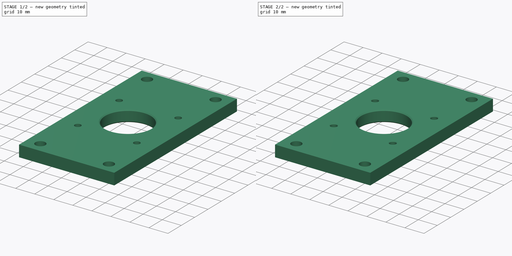
[diagram: build sequence overview — one tinted view per stage of 2, left to right]
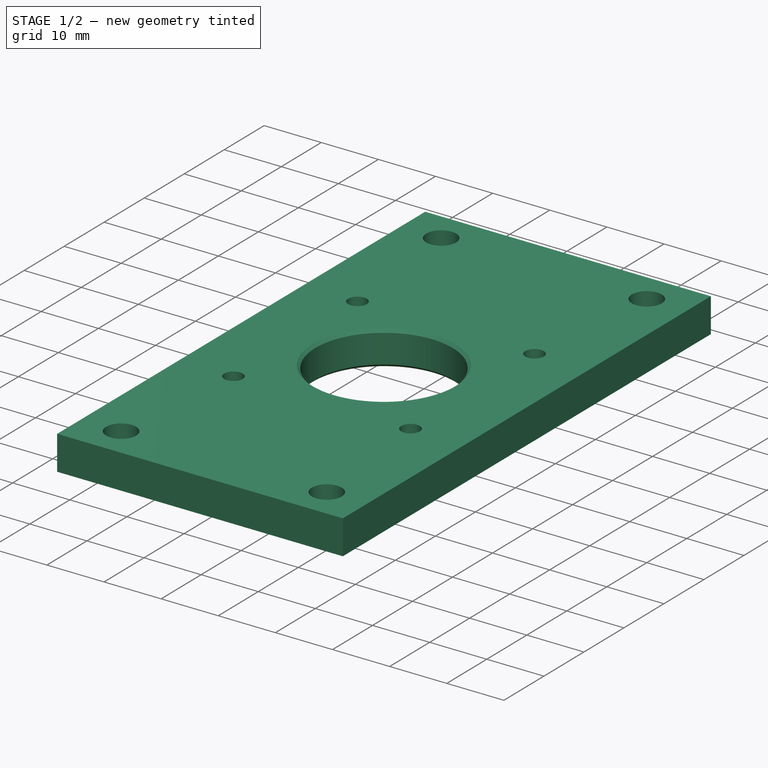
[diagram: stage 1 of 2 — iso view after this stage's code; geometry added in this stage tinted green]
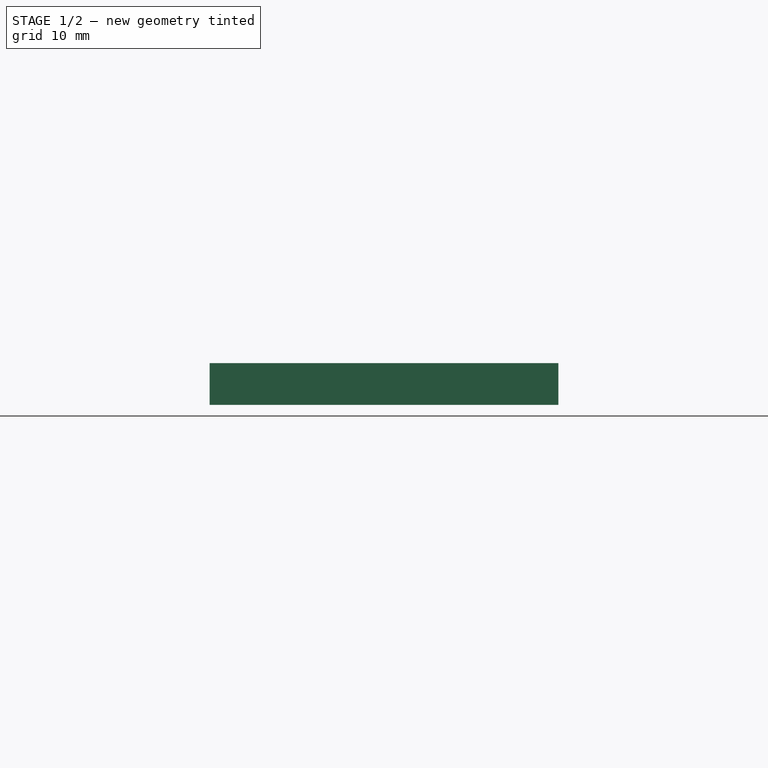
[diagram: stage 1 of 2 — front view after this stage's code; geometry added in this stage tinted green]
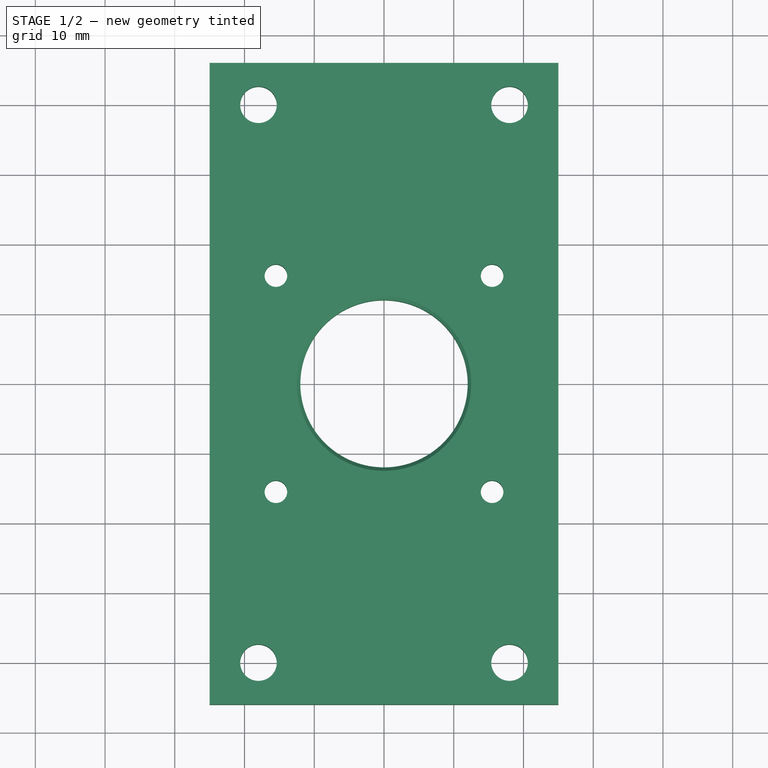
[diagram: stage 1 of 2 — top view after this stage's code; geometry added in this stage tinted green]
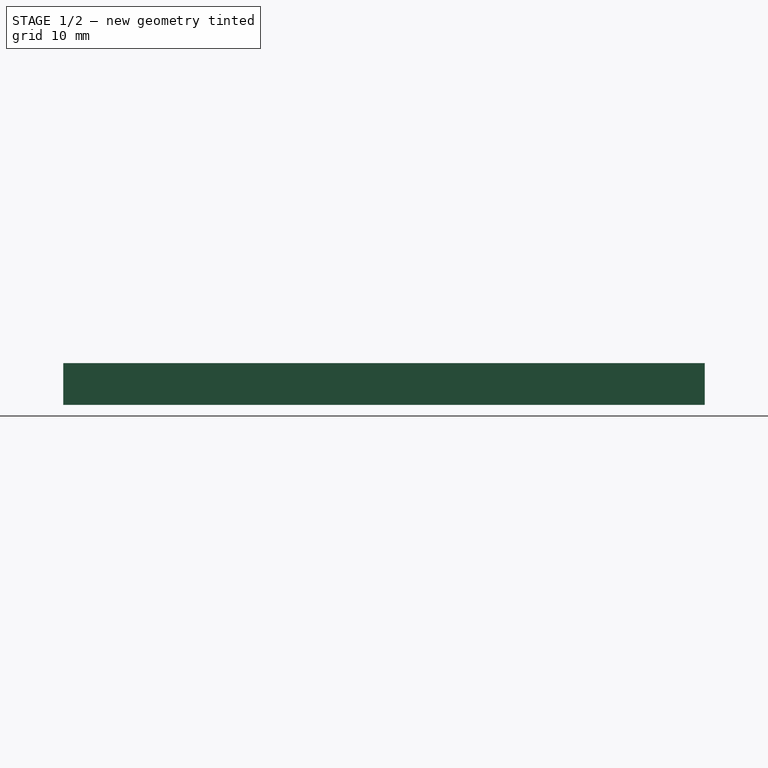
[diagram: stage 1 of 2 — right view after this stage's code; geometry added in this stage tinted green]
FCSTD DOCUMENT  (FreeCAD 0.15R4671 (Git))
Label: z-motor-mount
License: All rights reserved
LicenseURL: http://en.wikipedia.org/wiki/All_rights_reserved
objects: Drawing::FeatureView×18, PartDesign::Chamfer×2, Drawing::FeatureViewPart×2, Sketcher::SketchObject×1, PartDesign::Pad×1, Drawing::FeaturePage×1
note: 5 computed .brp shape members not serialized (recipe doc carries the construction recipe); baked Part::Feature solids carry a one-line shape summary decoded from their .brp

FEATURE [Sketcher::SketchObject] Sketch  label="base-sketch"
  sketch-geometry (21):
    g0: LineSegment [constr] StartX=-18 StartY=40 StartZ=0 EndX=18 EndY=40 EndZ=0
    g1: LineSegment [constr] StartX=18 StartY=40 StartZ=0 EndX=18 EndY=-40 EndZ=0
    g2: LineSegment [constr] StartX=18 StartY=-40 StartZ=0 EndX=-18 EndY=-40 EndZ=0
    g3: LineSegment [constr] StartX=-18 StartY=-40 StartZ=0 EndX=-18 EndY=40 EndZ=0
    g4: LineSegment [constr] StartX=-15.5 StartY=15.5 StartZ=0 EndX=15.5 EndY=15.5 EndZ=0
    g5: LineSegment [constr] StartX=15.5 StartY=15.5 StartZ=0 EndX=15.5 EndY=-15.5 EndZ=0
    g6: LineSegment [constr] StartX=15.5 StartY=-15.5 StartZ=0 EndX=-15.5 EndY=-15.5 EndZ=0
    g7: LineSegment [constr] StartX=-15.5 StartY=-15.5 StartZ=0 EndX=-15.5 EndY=15.5 EndZ=0
    g8: LineSegment StartX=-25 StartY=46 StartZ=0 EndX=25 EndY=46 EndZ=0
    g9: LineSegment StartX=25 StartY=46 StartZ=0 EndX=25 EndY=-46 EndZ=0
    g10: LineSegment StartX=25 StartY=-46 StartZ=0 EndX=-25 EndY=-46 EndZ=0
    g11: LineSegment StartX=-25 StartY=-46 StartZ=0 EndX=-25 EndY=46 EndZ=0
    g12: Circle CenterX=-18 CenterY=40 CenterZ=0 NormalX=0 NormalY=0 NormalZ=1 Radius=2.625
    g13: Circle CenterX=18 CenterY=40 CenterZ=0 NormalX=0 NormalY=0 NormalZ=1 Radius=2.625
    g14: Circle CenterX=-18 CenterY=-40 CenterZ=0 NormalX=0 NormalY=0 NormalZ=1 Radius=2.625
    g15: Circle CenterX=18 CenterY=-40 CenterZ=0 NormalX=0 NormalY=0 NormalZ=1 Radius=2.625
    g16: Circle CenterX=-15.5 CenterY=15.5 CenterZ=0 NormalX=0 NormalY=0 NormalZ=1 Radius=1.625
    g17: Circle CenterX=15.5 CenterY=15.5 CenterZ=0 NormalX=0 NormalY=0 NormalZ=1 Radius=1.625
    g18: Circle CenterX=-15.5 CenterY=-15.5 CenterZ=0 NormalX=0 NormalY=0 NormalZ=1 Radius=1.625
    g19: Circle CenterX=15.5 CenterY=-15.5 CenterZ=0 NormalX=0 NormalY=0 NormalZ=1 Radius=1.625
    g20: Circle CenterX=0 CenterY=0 CenterZ=0 NormalX=0 NormalY=0 NormalZ=1 Radius=12
  constraints (54):
    c: Coincident(g0,g1)
    c: Coincident(g1,g2)
    c: Coincident(g2,g3)
    c: Coincident(g3,g0)
    c: Horizontal(g0)
    c: Horizontal(g2)
    c: Vertical(g1)
    c: Vertical(g3)
    c: Symmetric(g0,g2,g-1)
    c: Symmetric(g0,g0,g-2)
    c: DistanceY(g0,g1) = -80
    c: DistanceX(g2,g1) = 36
    c: Coincident(g4,g5)
    c: Coincident(g5,g6)
    c: Coincident(g6,g7)
    c: Coincident(g7,g4)
    c: Horizontal(g4)
    c: Horizontal(g6)
    c: Vertical(g5)
    c: Vertical(g7)
    c: Symmetric(g4,g4,g-2)
    c: Symmetric(g4,g6,g-1)
    c: Equal(g4,g7)
    c: DistanceY(g4,g6) = -31
    c: Coincident(g8,g9)
    c: Coincident(g9,g10)
    c: Coincident(g10,g11)
    c: Coincident(g11,g8)
    c: Horizontal(g8)
    c: Horizontal(g10)
    c: Vertical(g9)
    c: Vertical(g11)
    c: Symmetric(g8,g8,g-2)
    c: Symmetric(g8,g10,g-1)
    c: DistanceY(g8,g9) = -92
    c: DistanceX(g10,g9) = 50
    c: Coincident(g12,g0)
    c: Coincident(g13,g0)
    c: Coincident(g14,g2)
    c: Coincident(g15,g1)
    c: Radius(g12) = 2.625
    c: Equal(g12,g13)
    c: Equal(g12,g14)
    c: Equal(g12,g15)
    c: Coincident(g16,g4)
    c: Coincident(g17,g4)
    c: Coincident(g18,g6)
    c: Coincident(g19,g5)
    c: Radius(g17) = 1.625
    c: Equal(g17,g16)
    c: Equal(g17,g18)
    c: Equal(g17,g19)
    c: Coincident(g20,g-1)
    c: Radius(g20) = 12
FEATURE [PartDesign::Pad] Pad  label="base"
  Length = 6
  Length2 = 100
  Sketch = -> Sketch
  Type = 0
FEATURE [PartDesign::Chamfer] Chamfer  label="motor-hole-chamfer"
  Base = -> Pad [Edge15,Edge14]
  Size = 0.5
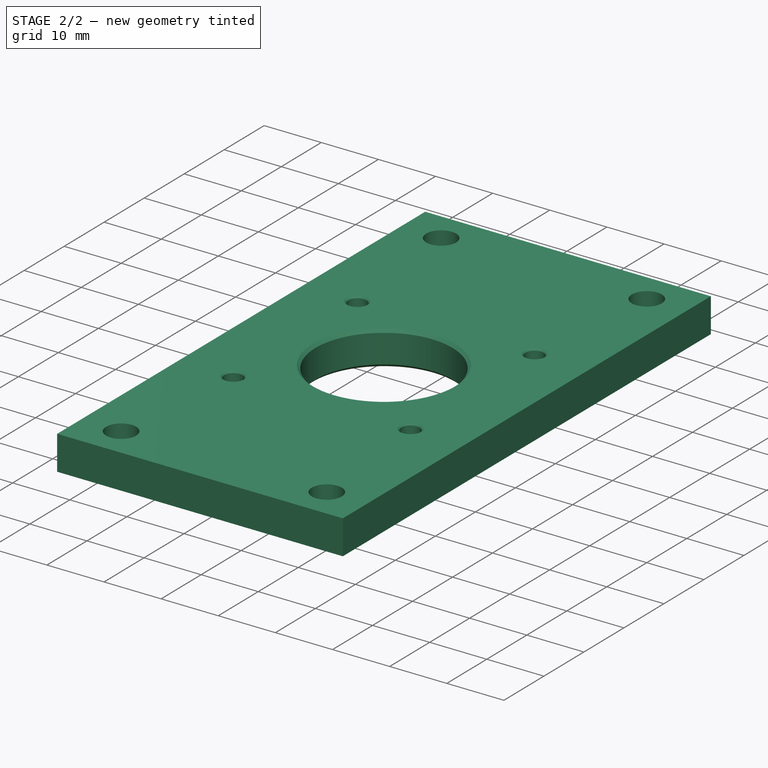
[diagram: stage 2 of 2 — iso view after this stage's code; geometry added in this stage tinted green]
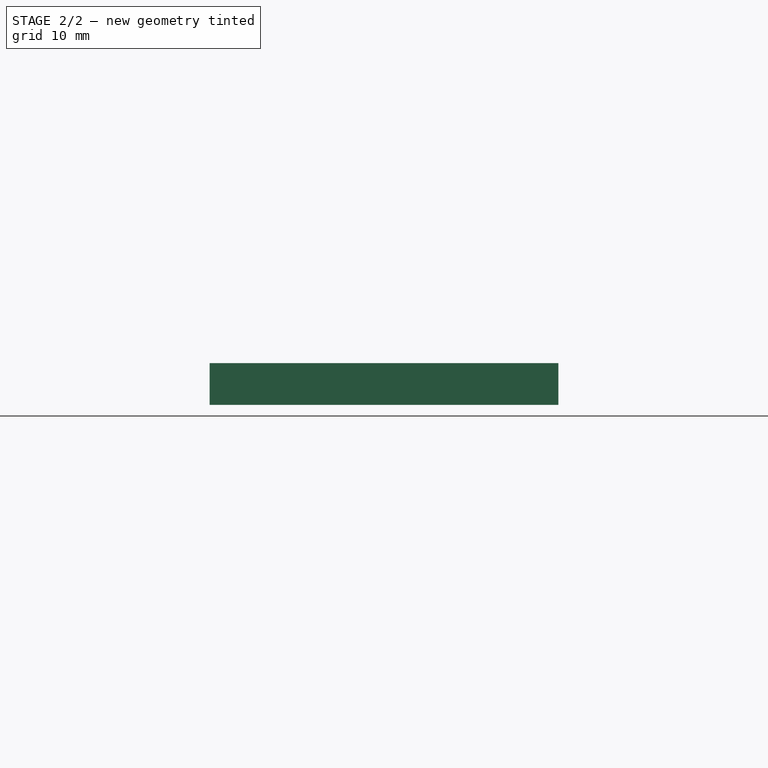
[diagram: stage 2 of 2 — front view after this stage's code; geometry added in this stage tinted green]
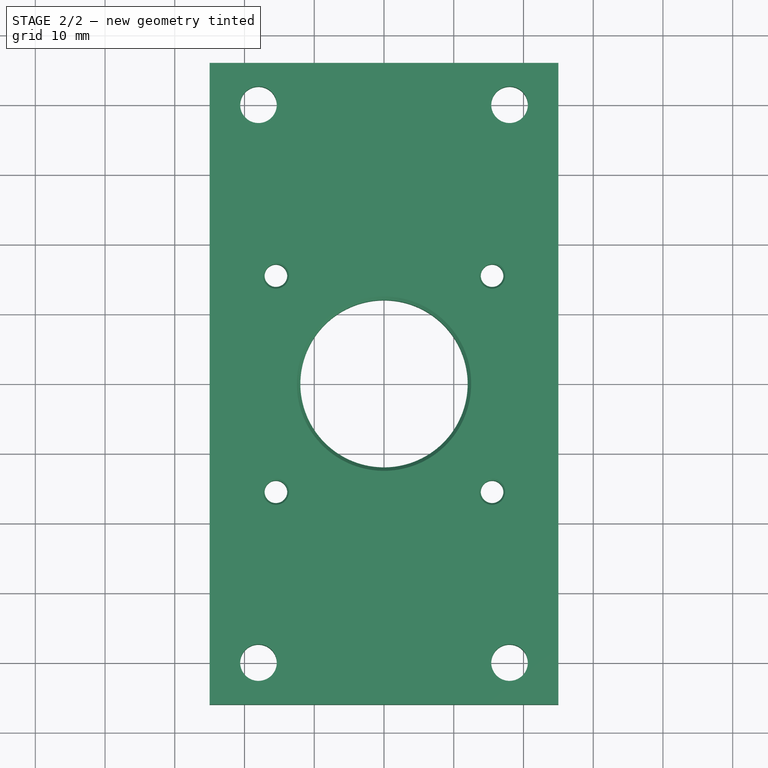
[diagram: stage 2 of 2 — top view after this stage's code; geometry added in this stage tinted green]
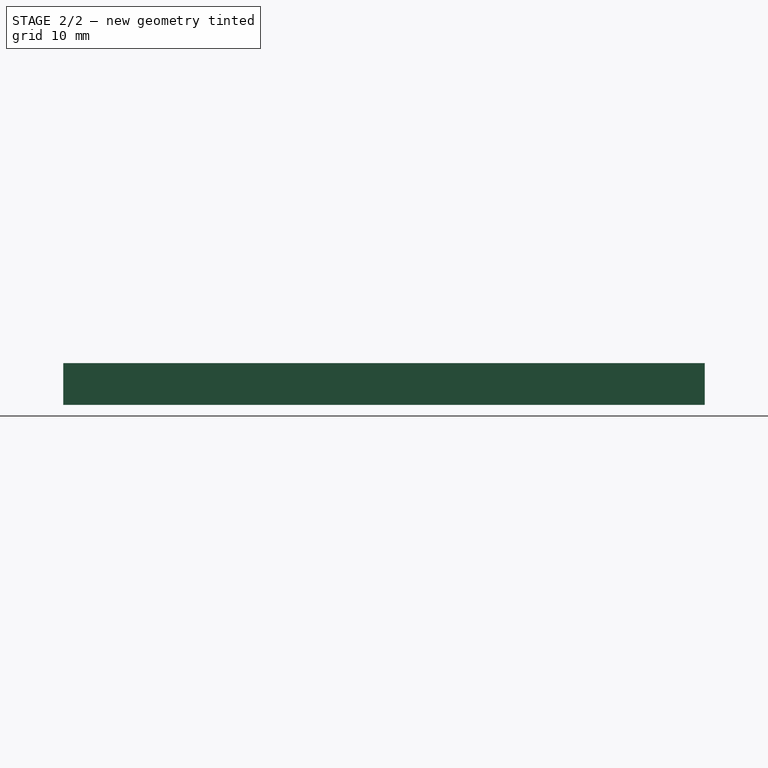
[diagram: stage 2 of 2 — right view after this stage's code; geometry added in this stage tinted green]
FEATURE [PartDesign::Chamfer] Chamfer001  label="z-motor-mount"
  Base = -> Chamfer [Edge31,Edge29,Edge28,Edge30,Edge16,Edge18,Edge17,Edge19]
  Size = 0.25
FEATURE [Drawing::FeatureViewPart] Ortho  label="Ortho_0_0"
  Direction = (1,0,0)
  HiddenWidth = 0.15
  LineWidth = 0.35
  Rotation = -90
  Scale = 2
  ShowHiddenLines = false
  ShowSmoothLines = false
  Source = -> Chamfer001
  Tolerance = 0.05
  ViewResult = <g id="Ortho_0_0"\n   transform="rotate(-90,148.5,177.333) translate(148.5,177.333) scale(2,2)"\n  >\n<g   stroke="rgb(0, 0, 0)"\n   stroke-width="0.175"\n   stroke-linecap="butt"\n   stroke-linejoin="miter"\n   fill="none"\n   transform="scale(1,-1)"\n  >\n<path id= "1" d=" M 0 -46 L 0 46 " />\n<path id= "2" d=" M 0 -46 L 6 -46 " />\n<path id= "3" d=" M 0 46 L 6 46 " />\n<path id= "4" d=" M 6 -46 L 6 46 " />\n</g>\n</g>
  Visible = true
  X = 148.5
  Y = 177.333
FEATURE [Drawing::FeatureViewPart] Ortho001  label="Ortho_0_1"
  Direction = (0,0,1)
  HiddenWidth = 0.15
  LineWidth = 0.35
  Rotation = 90
  Scale = 2
  ShowHiddenLines = false
  ShowSmoothLines = false
  Source = -> Chamfer001
  Tolerance = 0.05
  ViewResult = <g id="Ortho_0_1"\n   transform="rotate(90,148.5,82.6667) translate(148.5,82.6667) scale(2,2)"\n  >\n<g   stroke="rgb(0, 0, 0)"\n   stroke-width="0.175"\n   stroke-linecap="butt"\n   stroke-linejoin="miter"\n   fill="none"\n   transform="scale(1,-1)"\n  >\n<path id= "1" d=" M -25 46 L 25 46 " />\n<path id= "2" d=" M 25 46 L 25 -46 " />\n<path id= "3" d=" M 25 -46 L -25 -46 " />\n<path id= "4" d=" M -25 -46 L -25 46 " />\n<circle cx ="18" cy ="-40" r ="2.625" /><circle cx ="-18" cy ="-40" r ="2.625" /><circle cx ="18" cy ="40" r ="2.625" /><circle cx ="-18" cy ="40" r ="2.625" /><circle cx ="15.5" cy ="-15.5" r ="1.625" /><circle cx ="0" cy ="0" r ="12" /><circle cx ="-15.5" cy ="15.5" r ="1.875" /><circle cx ="0" cy ="0" r ="12.5" /><circle cx ="-15.5" cy ="-15.5" r ="1.875" /><circle cx ="15.5" cy ="-15.5" r ="1.875" /><circle cx ="15.5" cy ="15.5" r ="1.875" /><circle cx ="15.5" cy ="15.5" r ="1.625" /><circle cx ="-15.5" cy ="-15.5" r ="1.625" /><circle cx ="-15.5" cy ="15.5" r ="1.625" /></g>\n</g>
  Visible = true
  X = 148.5
  Y = 82.6667
FEATURE [Drawing::FeatureView] dim003
  Rotation = 0
  ViewResult = <g> \n  <line x1="54.500000" y1="32.666700" x2="22.110286" y2="32.666700" style="stroke:rgb(0,0,255);stroke-width:0.50" />\n<line x1="54.500000" y1="132.666700" x2="22.110286" y2="132.666700" style="stroke:rgb(0,0,255);stroke-width:0.50" />\n<line x1="23.110286" y1="32.666700" x2="23.110286" y2="132.666700" style="stroke:rgb(0,0,255);stroke-width:0.50" /> \n  <polygon points="23.110286,132.666700 24.110286,129.666700 23.110286,128.666700 22.110286,129.666700" style="fill:rgb(0,0,255);stroke:rgb(0,0,255);stroke-width:0" /><polygon points="23.110286,32.666700 22.110286,35.666700 23.110286,36.666700 24.110286,35.666700" style="fill:rgb(0,0,255);stroke:rgb(0,0,255);stroke-width:0" /> \n  <text x="21.110286" y="82.666700" font-family="inherit" font-size="3.6" fill="rgb(0,0,255)" text-anchor="middle" transform="rotate(-90.000000 21.110286,82.666700)" >50</text> </g>
  Visible = true
  X = 0
  Y = 0
FEATURE [Drawing::FeatureView] dim004
  Rotation = 0
  ViewResult = <g> \n  <line x1="66.500000" y1="46.666700" x2="34.820943" y2="46.666700" style="stroke:rgb(0,0,255);stroke-width:0.50" />\n<line x1="66.500000" y1="118.666700" x2="34.820943" y2="118.666700" style="stroke:rgb(0,0,255);stroke-width:0.50" />\n<line x1="35.820943" y1="46.666700" x2="35.820943" y2="118.666700" style="stroke:rgb(0,0,255);stroke-width:0.50" /> \n  <polygon points="35.820943,118.666700 36.820943,115.666700 35.820943,114.666700 34.820943,115.666700" style="fill:rgb(0,0,255);stroke:rgb(0,0,255);stroke-width:0" /><polygon points="35.820943,46.666700 34.820943,49.666700 35.820943,50.666700 36.820943,49.666700" style="fill:rgb(0,0,255);stroke:rgb(0,0,255);stroke-width:0" /> \n  <text x="33.820943" y="82.666700" font-family="inherit" font-size="3.6" fill="rgb(0,0,255)" text-anchor="middle" transform="rotate(-90.000000 33.820943,82.666700)" >36</text> </g>
  Visible = true
  X = 0
  Y = 0
FEATURE [Drawing::FeatureView] centerLines001
  Rotation = 0
  ViewResult = <g transform="scale(2.000000,2.000000)" stroke="rgb(0,0,255)"  stroke-width="0.160000" > <path d="M 74.250000,16.333350 L 74.250000,17.833350 M 74.250000,18.833350 L 74.250000,21.833350 M 74.250000,22.833350 L 74.250000,24.333350 M 74.250000,25.333350 L 74.250000,28.333350 M 74.250000,29.333350 L 74.250000,30.833350 M 74.250000,31.833350 L 74.250000,34.833350 M 74.250000,35.833350 L 74.250000,37.333350 M 74.250000,38.333350 L 74.250000,41.333350 M 74.250000,42.333350 L 74.250000,43.833350 M 74.250000,44.833350 L 74.250000,47.833350 M 74.250000,48.833350 L 74.250000,50.333350 M 74.250000,51.333350 L 74.250000,54.333350 M 74.250000,55.333350 L 74.250000,56.833350 M 74.250000,57.833350 L 74.250000,60.833350 M 74.250000,61.833350 L 74.250000,63.333350 M 74.250000,64.333350 L 74.250000,66.870041 "/>\n<path d="M 74.250000,16.333350 L 74.250000,17.833350 M 74.250000,18.833350 L 74.250000,21.833350 M 74.250000,22.833350 L 74.250000,24.333350 M 74.250000,25.333350 L 74.250000,28.333350 M 74.250000,29.333350 L 74.250000,30.833350 M 74.250000,31.833350 L 74.250000,34.833350 M 74.250000,35.833350 L 74.250000,37.333350 M 74.250000,38.333350 L 74.250000,41.333350 M 74.250000,42.333350 L 74.250000,43.833350 M 74.250000,44.833350 L 74.250000,47.833350 M 74.250000,48.833350 L 74.250000,50.333350 M 74.250000,51.333350 L 74.250000,54.333350 M 74.250000,55.333350 L 74.250000,56.833350 M 74.250000,57.833350 L 74.250000,60.833350 M 74.250000,61.833350 L 74.250000,63.333350 M 74.250000,64.333350 L 74.250000,66.870041 "/> </g> 
  Visible = true
  X = 0
  Y = 0
FEATURE [Drawing::FeatureView] dim008
  Rotation = 0
  ViewResult = <g>  <circle cx ="179.500000" cy ="51.666700" r="0.250000" stroke="none" fill="rgb(0,0,255)" /> \n<line x1="186.108147" y1="42.680027" x2="177.574674" y2="54.285024" style="stroke:rgb(0,0,255);stroke-width:0.50" />\n<polygon points="181.425326,49.048376 184.008187,47.223869 183.794957,45.825823 182.396911,46.039053" style="fill:rgb(0,0,255);stroke:rgb(0,0,255);stroke-width:0" />\n<polygon points="177.574674,54.285024 174.991813,56.109531 175.205043,57.507577 176.603089,57.294347" style="fill:rgb(0,0,255);stroke:rgb(0,0,255);stroke-width:0" />\n<line x1="186.108147" y1="42.680027" x2="194.818357" y2="42.680027" style="stroke:rgb(0,0,255);stroke-width:0.50" />\n<text x="190.463252" y="40.680027" font-family="inherit" font-size="3.6" fill="rgb(0,0,255)" text-anchor="middle"  >4 x Ø3.25</text> </g>
  Visible = true
  X = 0
  Y = 0
FEATURE [Drawing::FeatureView] dim009
  Rotation = 0
  ViewResult = <g>  <circle cx ="148.500000" cy ="82.666700" r="0.250000" stroke="none" fill="rgb(0,0,255)" /> \n<line x1="173.333173" y1="69.391337" x2="127.334512" y2="93.981385" style="stroke:rgb(0,0,255);stroke-width:0.50" />\n<polygon points="169.665488,71.352015 166.548357,71.884455 166.137907,73.237796 167.491248,73.648246" style="fill:rgb(0,0,255);stroke:rgb(0,0,255);stroke-width:0" />\n<polygon points="127.334512,93.981385 130.451643,93.448945 130.862093,92.095604 129.508752,91.685154" style="fill:rgb(0,0,255);stroke:rgb(0,0,255);stroke-width:0" />\n<line x1="173.333173" y1="69.391337" x2="189.882571" y2="69.391337" style="stroke:rgb(0,0,255);stroke-width:0.50" />\n<text x="181.607872" y="67.391337" font-family="inherit" font-size="3.6" fill="rgb(0,0,255)" text-anchor="middle" transform="rotate(0.000000 181.607872,67.391337)" >Ø24</text> </g>
  Visible = true
  X = 0
  Y = 0
FEATURE [Drawing::FeatureView] dim010
  Rotation = 0
  ViewResult = <g> \n  <line x1="54.500000" y1="165.333000" x2="39.066965" y2="165.333000" style="stroke:rgb(0,0,255);stroke-width:0.50" />\n<line x1="54.500000" y1="177.333000" x2="39.066965" y2="177.333000" style="stroke:rgb(0,0,255);stroke-width:0.50" />\n<line x1="40.066965" y1="165.333000" x2="40.066965" y2="177.333000" style="stroke:rgb(0,0,255);stroke-width:0.50" /> \n  <polygon points="40.066965,177.333000 41.066965,174.333000 40.066965,173.333000 39.066965,174.333000" style="fill:rgb(0,0,255);stroke:rgb(0,0,255);stroke-width:0" /><polygon points="40.066965,165.333000 39.066965,168.333000 40.066965,169.333000 41.066965,168.333000" style="fill:rgb(0,0,255);stroke:rgb(0,0,255);stroke-width:0" /> \n  <text x="38.066965" y="171.333000" font-family="inherit" font-size="3.6" fill="rgb(0,0,255)" text-anchor="middle" transform="rotate(-90.000000 38.066965,171.333000)" >6</text> </g>
  Visible = true
  X = 0
  Y = 0
FEATURE [Drawing::FeatureView] dim007
  Rotation = 0
  ViewResult = <g>  <circle cx ="68.500000" cy ="46.666700" r="0.250000" stroke="none" fill="rgb(0,0,255)" /> \n<line x1="75.778824" y1="37.744242" x2="65.181341" y2="50.734746" style="stroke:rgb(0,0,255);stroke-width:0.50" />\n<polygon points="71.818659,42.598654 69.147416,44.291126 69.290157,45.698118 70.697148,45.555377" style="fill:rgb(0,0,255);stroke:rgb(0,0,255);stroke-width:0" />\n<polygon points="65.181341,50.734746 67.852584,49.042274 67.709843,47.635282 66.302852,47.778023" style="fill:rgb(0,0,255);stroke:rgb(0,0,255);stroke-width:0" />\n<line x1="75.778824" y1="37.744242" x2="86.521416" y2="37.744242" style="stroke:rgb(0,0,255);stroke-width:0.50" />\n<text x="81.150120" y="35.744242" font-family="inherit" font-size="3.6" fill="rgb(0,0,255)" text-anchor="middle"  >4 x Ø5.25</text> </g>
  Visible = true
  X = 0
  Y = 0
FEATURE [Drawing::FeatureView] dim011
  Rotation = 0
  ViewResult = <g> \n  <line x1="66.500000" y1="118.666700" x2="34.730616" y2="118.666700" style="stroke:rgb(0,0,255);stroke-width:0.50" />\n<line x1="54.500000" y1="132.666700" x2="34.730616" y2="132.666700" style="stroke:rgb(0,0,255);stroke-width:0.50" />\n<line x1="35.730616" y1="118.666700" x2="35.730616" y2="132.666700" style="stroke:rgb(0,0,255);stroke-width:0.50" /> \n  <polygon points="35.730616,132.666700 36.730616,129.666700 35.730616,128.666700 34.730616,129.666700" style="fill:rgb(0,0,255);stroke:rgb(0,0,255);stroke-width:0" /><polygon points="35.730616,118.666700 34.730616,121.666700 35.730616,122.666700 36.730616,121.666700" style="fill:rgb(0,0,255);stroke:rgb(0,0,255);stroke-width:0" /> \n  <text x="33.730616" y="125.666700" font-family="inherit" font-size="3.6" fill="rgb(0,0,255)" text-anchor="middle" transform="rotate(-90.000000 33.730616,125.666700)" >7</text> </g>
  Visible = true
  X = 0
  Y = 0
FEATURE [Drawing::FeatureView] dim001
  Rotation = 0
  ViewResult = <g> \n  <line x1="56.500000" y1="30.666700" x2="56.500000" y2="8.310378" style="stroke:rgb(0,0,255);stroke-width:0.50" />\n<line x1="240.500000" y1="30.666700" x2="240.500000" y2="8.310378" style="stroke:rgb(0,0,255);stroke-width:0.50" />\n<line x1="56.500000" y1="9.310378" x2="240.500000" y2="9.310378" style="stroke:rgb(0,0,255);stroke-width:0.50" /> \n  <polygon points="240.500000,9.310378 237.500000,8.310378 236.500000,9.310378 237.500000,10.310378" style="fill:rgb(0,0,255);stroke:rgb(0,0,255);stroke-width:0" /><polygon points="56.500000,9.310378 59.500000,10.310378 60.500000,9.310378 59.500000,8.310378" style="fill:rgb(0,0,255);stroke:rgb(0,0,255);stroke-width:0" /> \n  <text x="148.500000" y="7.310378" font-family="inherit" font-size="3.6" fill="rgb(0,0,255)" text-anchor="middle" transform="rotate(0.000000 148.500000,7.310378)" >92</text> </g>
  Visible = true
  X = 0
  Y = 0
FEATURE [Drawing::FeatureView] dim002
  Rotation = 0
  ViewResult = <g> \n  <line x1="68.500000" y1="44.666700" x2="68.500000" y2="15.774684" style="stroke:rgb(0,0,255);stroke-width:0.50" />\n<line x1="228.500000" y1="44.666700" x2="228.500000" y2="15.774684" style="stroke:rgb(0,0,255);stroke-width:0.50" />\n<line x1="68.500000" y1="16.774684" x2="228.500000" y2="16.774684" style="stroke:rgb(0,0,255);stroke-width:0.50" /> \n  <polygon points="228.500000,16.774684 225.500000,15.774684 224.500000,16.774684 225.500000,17.774684" style="fill:rgb(0,0,255);stroke:rgb(0,0,255);stroke-width:0" /><polygon points="68.500000,16.774684 71.500000,17.774684 72.500000,16.774684 71.500000,15.774684" style="fill:rgb(0,0,255);stroke:rgb(0,0,255);stroke-width:0" /> \n  <text x="148.500000" y="14.774684" font-family="inherit" font-size="3.6" fill="rgb(0,0,255)" text-anchor="middle" transform="rotate(0.000000 148.500000,14.774684)" >80</text> </g>
  Visible = true
  X = 0
  Y = 0
FEATURE [Drawing::FeatureView] dim012
  Rotation = 0
  ViewResult = <g> \n  <line x1="56.500000" y1="30.666700" x2="56.500000" y2="15.774684" style="stroke:rgb(0,0,255);stroke-width:0.50" />\n<line x1="68.500000" y1="44.666700" x2="68.500000" y2="15.774684" style="stroke:rgb(0,0,255);stroke-width:0.50" />\n<line x1="56.500000" y1="16.774684" x2="68.500000" y2="16.774684" style="stroke:rgb(0,0,255);stroke-width:0.50" /> \n  <polygon points="68.500000,16.774684 65.500000,15.774684 64.500000,16.774684 65.500000,17.774684" style="fill:rgb(0,0,255);stroke:rgb(0,0,255);stroke-width:0" /><polygon points="56.500000,16.774684 59.500000,17.774684 60.500000,16.774684 59.500000,15.774684" style="fill:rgb(0,0,255);stroke:rgb(0,0,255);stroke-width:0" /> \n  <text x="62.500000" y="14.774684" font-family="inherit" font-size="3.6" fill="rgb(0,0,255)" text-anchor="middle" transform="rotate(0.000000 62.500000,14.774684)" >6</text> </g>
  Visible = true
  X = 0
  Y = 0
FEATURE [Drawing::FeatureView] dim013
  Rotation = 0
  ViewResult = <g> \n  <line x1="117.500000" y1="49.666700" x2="117.500000" y2="23.230098" style="stroke:rgb(0,0,255);stroke-width:0.50" />\n<line x1="179.500000" y1="49.666700" x2="179.500000" y2="23.230098" style="stroke:rgb(0,0,255);stroke-width:0.50" />\n<line x1="117.500000" y1="24.230098" x2="179.500000" y2="24.230098" style="stroke:rgb(0,0,255);stroke-width:0.50" /> \n  <polygon points="179.500000,24.230098 176.500000,23.230098 175.500000,24.230098 176.500000,25.230098" style="fill:rgb(0,0,255);stroke:rgb(0,0,255);stroke-width:0" /><polygon points="117.500000,24.230098 120.500000,25.230098 121.500000,24.230098 120.500000,23.230098" style="fill:rgb(0,0,255);stroke:rgb(0,0,255);stroke-width:0" /> \n  <text x="148.500000" y="22.230098" font-family="inherit" font-size="3.6" fill="rgb(0,0,255)" text-anchor="middle" transform="rotate(0.000000 148.500000,22.230098)" >31</text> </g>
  Visible = true
  X = 0
  Y = 0
FEATURE [Drawing::FeatureView] dim006
  Rotation = 0
  ViewResult = <g> \n  <line x1="117.500000" y1="49.666700" x2="117.500000" y2="23.103987" style="stroke:rgb(0,0,255);stroke-width:0.50" />\n<line x1="68.500000" y1="44.666700" x2="68.500000" y2="23.103987" style="stroke:rgb(0,0,255);stroke-width:0.50" />\n<line x1="117.500000" y1="24.103987" x2="68.500000" y2="24.103987" style="stroke:rgb(0,0,255);stroke-width:0.50" /> \n  <polygon points="68.500000,24.103987 71.500000,25.103987 72.500000,24.103987 71.500000,23.103987" style="fill:rgb(0,0,255);stroke:rgb(0,0,255);stroke-width:0" /><polygon points="117.500000,24.103987 114.500000,23.103987 113.500000,24.103987 114.500000,25.103987" style="fill:rgb(0,0,255);stroke:rgb(0,0,255);stroke-width:0" /> \n  <text x="93.000000" y="22.103987" font-family="inherit" font-size="3.6" fill="rgb(0,0,255)" text-anchor="middle" transform="rotate(0.000000 93.000000,22.103987)" >24.5</text> </g>
  Visible = true
  X = 0
  Y = 0
FEATURE [Drawing::FeatureView] dim005
  Rotation = 0
  ViewResult = <g> \n  <line x1="115.500000" y1="51.666700" x2="103.639660" y2="51.666700" style="stroke:rgb(0,0,255);stroke-width:0.50" />\n<line x1="115.500000" y1="113.666700" x2="103.639660" y2="113.666700" style="stroke:rgb(0,0,255);stroke-width:0.50" />\n<line x1="104.639660" y1="51.666700" x2="104.639660" y2="113.666700" style="stroke:rgb(0,0,255);stroke-width:0.50" /> \n  <polygon points="104.639660,113.666700 105.639660,110.666700 104.639660,109.666700 103.639660,110.666700" style="fill:rgb(0,0,255);stroke:rgb(0,0,255);stroke-width:0" /><polygon points="104.639660,51.666700 103.639660,54.666700 104.639660,55.666700 105.639660,54.666700" style="fill:rgb(0,0,255);stroke:rgb(0,0,255);stroke-width:0" /> \n  <text x="103.108348" y="76.225313" font-family="inherit" font-size="3.6" fill="rgb(0,0,255)" text-anchor="middle" transform="rotate(-90.000000 103.108348,76.225313)" >31</text> </g>
  Visible = true
  X = 0
  Y = 0
FEATURE [Drawing::FeatureView] dim014
  Rotation = 0
  ViewResult = <g> \n  <line x1="238.500000" y1="132.666700" x2="103.639660" y2="132.666700" style="stroke:rgb(0,0,255);stroke-width:0.50" />\n<line x1="115.500000" y1="113.666700" x2="103.639660" y2="113.666700" style="stroke:rgb(0,0,255);stroke-width:0.50" />\n<line x1="104.639660" y1="132.666700" x2="104.639660" y2="113.666700" style="stroke:rgb(0,0,255);stroke-width:0.50" /> \n  <polygon points="104.639660,113.666700 103.639660,116.666700 104.639660,117.666700 105.639660,116.666700" style="fill:rgb(0,0,255);stroke:rgb(0,0,255);stroke-width:0" /><polygon points="104.639660,132.666700 105.639660,129.666700 104.639660,128.666700 103.639660,129.666700" style="fill:rgb(0,0,255);stroke:rgb(0,0,255);stroke-width:0" /> \n  <text x="102.639660" y="123.166700" font-family="inherit" font-size="3.6" fill="rgb(0,0,255)" text-anchor="middle" transform="rotate(-90.000000 102.639660,123.166700)" >9.5</text> </g>
  Visible = true
  X = 0
  Y = 0
FEATURE [Drawing::FeatureView] dim015
  Rotation = 0
  ViewResult = <g> \n  <line x1="56.500000" y1="134.666700" x2="56.500000" y2="145.907497" style="stroke:rgb(0,0,255);stroke-width:0.50" />\n<line x1="148.500000" y1="135.740082" x2="148.500000" y2="145.907497" style="stroke:rgb(0,0,255);stroke-width:0.50" />\n<line x1="56.500000" y1="144.907497" x2="148.500000" y2="144.907497" style="stroke:rgb(0,0,255);stroke-width:0.50" /> \n  <polygon points="148.500000,144.907497 145.500000,143.907497 144.500000,144.907497 145.500000,145.907497" style="fill:rgb(0,0,255);stroke:rgb(0,0,255);stroke-width:0" /><polygon points="56.500000,144.907497 59.500000,145.907497 60.500000,144.907497 59.500000,143.907497" style="fill:rgb(0,0,255);stroke:rgb(0,0,255);stroke-width:0" /> \n  <text x="102.500000" y="142.907497" font-family="inherit" font-size="3.6" fill="rgb(0,0,255)" text-anchor="middle" transform="rotate(0.000000 102.500000,142.907497)" >46</text> </g>
  Visible = true
  X = 0
  Y = 0
FEATURE [Drawing::FeatureView] centerLines002
  Rotation = 0
  ViewResult = <g transform="scale(2.000000,2.000000)" stroke="rgb(0,0,255)"  stroke-width="0.160000" > <path d="M 74.250000,41.333350 L 74.250000,40.818397 "/>\n<path d="M 74.250000,41.333350 L 75.750000,41.333350 M 76.750000,41.333350 L 79.750000,41.333350 M 80.750000,41.333350 L 82.250000,41.333350 M 83.250000,41.333350 L 86.250000,41.333350 M 87.250000,41.333350 L 88.750000,41.333350 M 89.750000,41.333350 L 92.750000,41.333350 M 93.750000,41.333350 L 95.250000,41.333350 M 96.250000,41.333350 L 99.250000,41.333350 M 100.250000,41.333350 L 101.750000,41.333350 M 102.750000,41.333350 L 105.750000,41.333350 M 106.750000,41.333350 L 108.250000,41.333350 M 109.250000,41.333350 L 112.250000,41.333350 M 113.250000,41.333350 L 114.750000,41.333350 M 115.750000,41.333350 L 118.750000,41.333350 M 119.750000,41.333350 L 121.250000,41.333350 "/>\n<path d="M 74.250000,41.333350 L 74.250000,41.936709 "/>\n<path d="M 74.250000,41.333350 L 72.750000,41.333350 M 71.750000,41.333350 L 68.750000,41.333350 M 67.750000,41.333350 L 66.250000,41.333350 M 65.250000,41.333350 L 62.250000,41.333350 M 61.250000,41.333350 L 59.750000,41.333350 M 58.750000,41.333350 L 55.750000,41.333350 M 54.750000,41.333350 L 53.250000,41.333350 M 52.250000,41.333350 L 49.250000,41.333350 M 48.250000,41.333350 L 46.750000,41.333350 M 45.750000,41.333350 L 42.750000,41.333350 M 41.750000,41.333350 L 40.250000,41.333350 M 39.250000,41.333350 L 36.250000,41.333350 M 35.250000,41.333350 L 33.750000,41.333350 M 32.750000,41.333350 L 29.750000,41.333350 M 28.750000,41.333350 L 27.250000,41.333350 M 26.250000,41.333350 L 25.721181,41.333350 "/> </g> 
  Visible = true
  X = 0
  Y = 0
FEATURE [Drawing::FeatureView] dim016
  Rotation = 0
  ViewResult = <g> \n  <line x1="242.500000" y1="132.666700" x2="257.920141" y2="132.666700" style="stroke:rgb(0,0,255);stroke-width:0.50" />\n<line x1="244.500000" y1="82.666700" x2="257.920141" y2="82.666700" style="stroke:rgb(0,0,255);stroke-width:0.50" />\n<line x1="256.920141" y1="132.666700" x2="256.920141" y2="82.666700" style="stroke:rgb(0,0,255);stroke-width:0.50" /> \n  <polygon points="256.920141,82.666700 255.920141,85.666700 256.920141,86.666700 257.920141,85.666700" style="fill:rgb(0,0,255);stroke:rgb(0,0,255);stroke-width:0" /><polygon points="256.920141,132.666700 257.920141,129.666700 256.920141,128.666700 255.920141,129.666700" style="fill:rgb(0,0,255);stroke:rgb(0,0,255);stroke-width:0" /> \n  <text x="254.920141" y="107.666700" font-family="inherit" font-size="3.6" fill="rgb(0,0,255)" text-anchor="middle" transform="rotate(-90.000000 254.920141,107.666700)" >25</text> </g>
  Visible = true
  X = 0
  Y = 0
FEATURE [Drawing::FeaturePage] Page
  Group = -> [Ortho,Ortho001,dim003,dim004,centerLines001,dim008,dim009,dim010,dim007,dim011,dim001,dim002,dim012,dim013,dim006,dim005,dim014,dim015,centerLines002,dim016]
  Template = <path>
note: 1 file-system path scrubbed to <path> (originals preserved in the JSON sidecar)
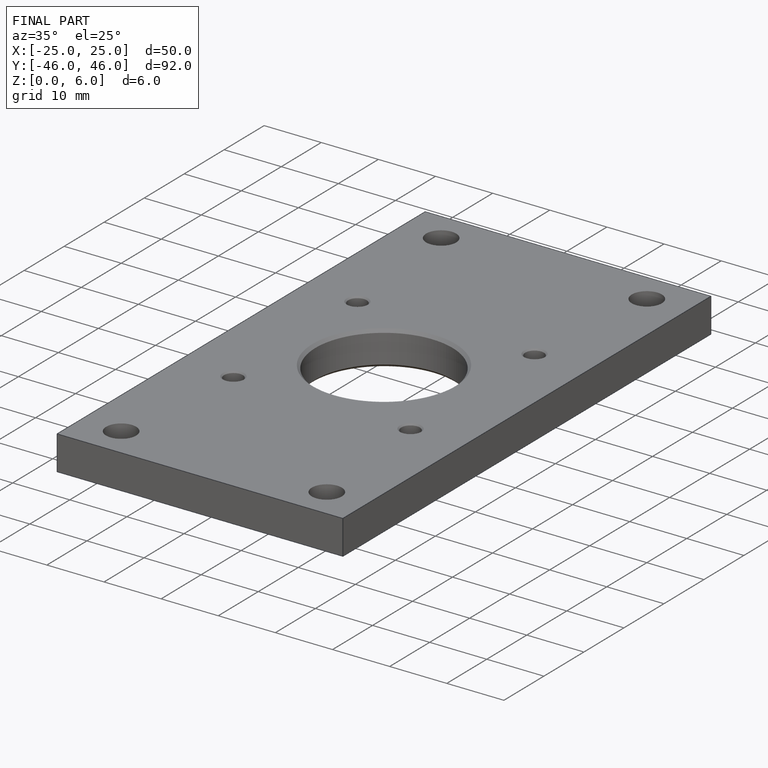
[diagram: finished part — iso view with bounding-box wireframe]
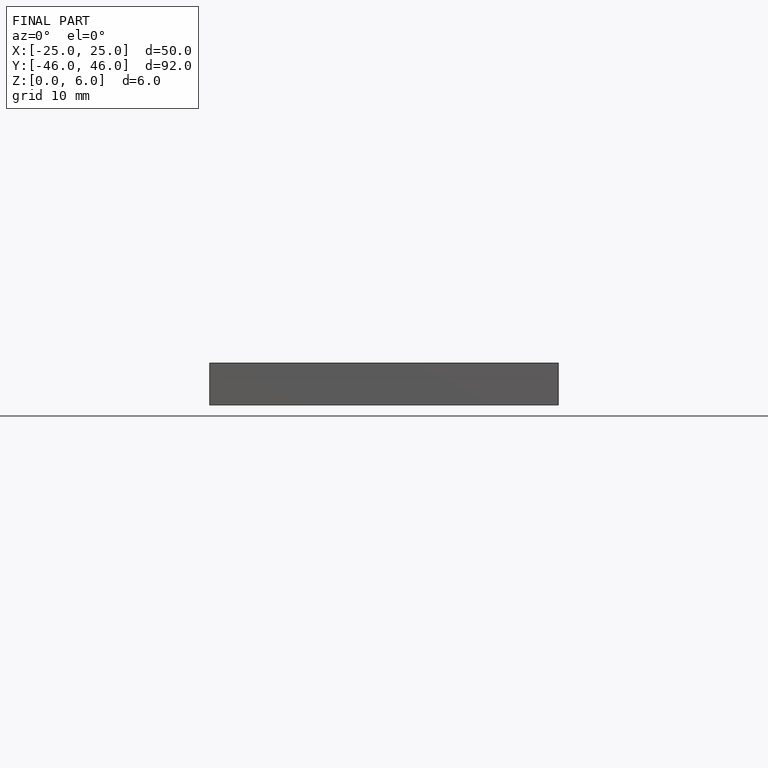
[diagram: finished part — front view with bounding-box wireframe]
